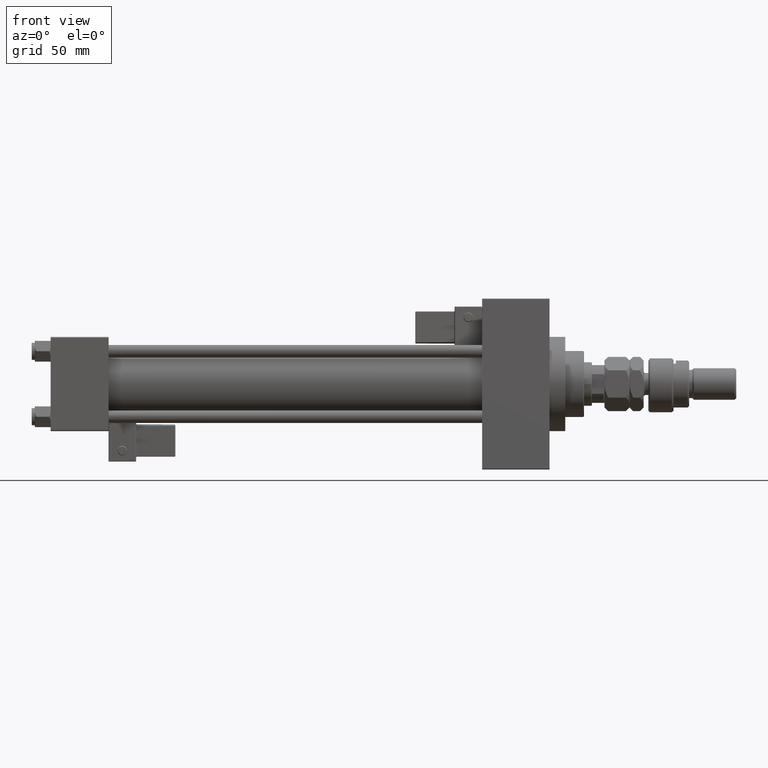
[diagram: clean part render]
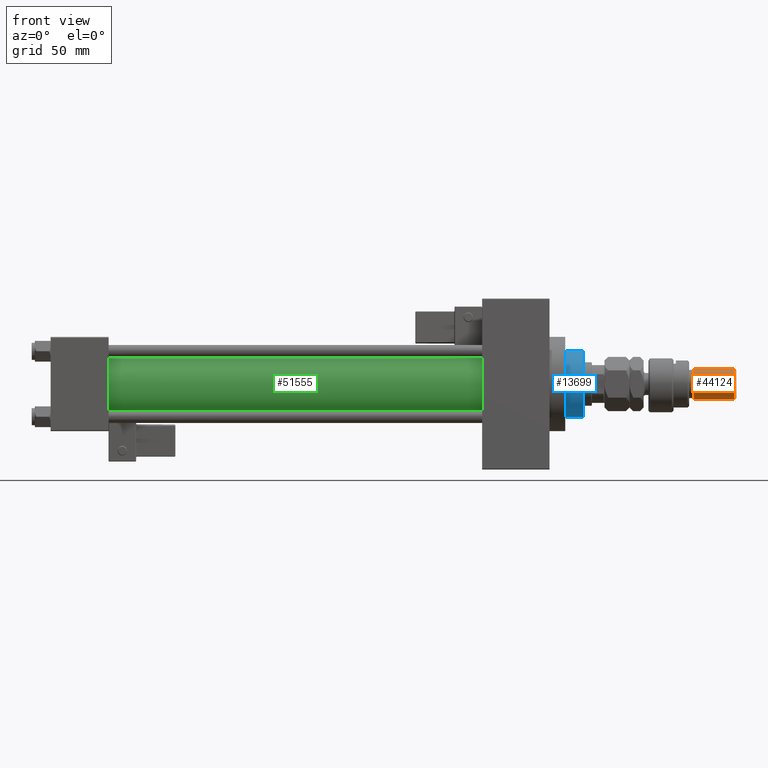
[diagram: same view with three faces highlighted in distinct colors, each labeled with its STEP entity id]
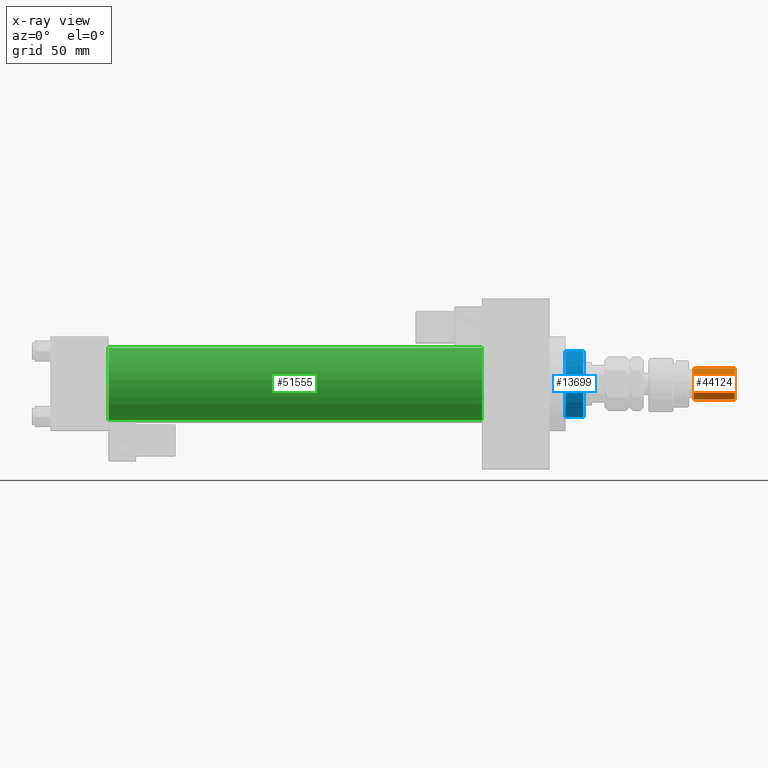
[diagram: x-ray of the same camera — body ghosted, the three highlighted faces saturated]
A machine part, front view with three faces highlighted in distinct colors.
The next image is the same camera in x-ray (body ghosted, the three faces saturated) — at least one of them is partly hidden behind the body in this view.
Their STEP definitions:

[orange] entity #44124 — the highlighted cylindrical surface (edge-blend (fillet) strip) has radius 10 mm, axis along (-1, -0, 0).
#3102 = AXIS2_PLACEMENT_3D ( 'NONE', #18283, #18543, #46204 ) ;
#4699 = CARTESIAN_POINT ( 'NONE',  ( -10.00000000000000000, 0.000000000000000000, 56.00000000000000711 ) ) ;
#8132 = AXIS2_PLACEMENT_3D ( 'NONE', #43010, #23863, #46994 ) ;
#8991 = LINE ( 'NONE', #24952, #42051 ) ;
#9736 = LINE ( 'NONE', #4699, #23521 ) ;
#10538 = VERTEX_POINT ( 'NONE', #19290 ) ;
#16501 = DIRECTION ( 'NONE',  ( 0.000000000000000000, 0.000000000000000000, -1.000000000000000000 ) ) ;
#16929 = ORIENTED_EDGE ( 'NONE', *, *, #42922, .T. ) ;
#18283 = CARTESIAN_POINT ( 'NONE',  ( 0.000000000000000000, 0.000000000000000000, 56.00000000000000711 ) ) ;
#18543 = DIRECTION ( 'NONE',  ( -0.000000000000000000, -0.000000000000000000, -1.000000000000000000 ) ) ;
#19290 = CARTESIAN_POINT ( 'NONE',  ( -10.00000000000000000, 0.000000000000000000, 54.99999999999998579 ) ) ;
#20569 = CARTESIAN_POINT ( 'NONE',  ( 10.00000000000000000, 1.224646799147353256E-15, 54.99999999999998579 ) ) ;
#23004 = CIRCLE ( 'NONE', #28962, 10.00000000000000000 ) ;
#23521 = VECTOR ( 'NONE', #25972, 1000.000000000000000 ) ;
#23863 = DIRECTION ( 'NONE',  ( -0.000000000000000000, -0.000000000000000000, 1.000000000000000000 ) ) ;
#24858 = CARTESIAN_POINT ( 'NONE',  ( -10.00000000000000000, 0.000000000000000000, 29.00000000000000711 ) ) ;
#24952 = CARTESIAN_POINT ( 'NONE',  ( 10.00000000000000000, 1.224646799147353256E-15, 56.00000000000000711 ) ) ;
#25741 = CYLINDRICAL_SURFACE ( 'NONE', #3102, 10.00000000000000000 ) ;
#25972 = DIRECTION ( 'NONE',  ( -0.000000000000000000, -0.000000000000000000, -1.000000000000000000 ) ) ;
#27884 = VERTEX_POINT ( 'NONE', #38079 ) ;
#28937 = DIRECTION ( 'NONE',  ( -0.000000000000000000, -0.000000000000000000, -1.000000000000000000 ) ) ;
#28962 = AXIS2_PLACEMENT_3D ( 'NONE', #36709, #16501, #49192 ) ;
#29515 = EDGE_CURVE ( 'NONE', #40656, #27884, #8991, .T. ) ;
#34796 = EDGE_CURVE ( 'NONE', #10538, #35130, #9736, .T. ) ;
#35130 = VERTEX_POINT ( 'NONE', #24858 ) ;
#35755 = ORIENTED_EDGE ( 'NONE', *, *, #34796, .T. ) ;
#36419 = ORIENTED_EDGE ( 'NONE', *, *, #29515, .F. ) ;
#36709 = CARTESIAN_POINT ( 'NONE',  ( 0.000000000000000000, 0.000000000000000000, 54.99999999999998579 ) ) ;
#37006 = CIRCLE ( 'NONE', #8132, 10.00000000000000000 ) ;
#38079 = CARTESIAN_POINT ( 'NONE',  ( 10.00000000000000000, 1.224646799147353256E-15, 29.00000000000000711 ) ) ;
#40656 = VERTEX_POINT ( 'NONE', #20569 ) ;
#42051 = VECTOR ( 'NONE', #28937, 1000.000000000000000 ) ;
#42735 = FACE_OUTER_BOUND ( 'NONE', #47243, .T. ) ;
#42922 = EDGE_CURVE ( 'NONE', #40656, #10538, #23004, .T. ) ;
#43010 = CARTESIAN_POINT ( 'NONE',  ( 0.000000000000000000, 0.000000000000000000, 29.00000000000000711 ) ) ;
#44124 = ADVANCED_FACE ( 'NONE', ( #42735 ), #25741, .T. ) ;
#44741 = EDGE_CURVE ( 'NONE', #35130, #27884, #37006, .T. ) ;
#46204 = DIRECTION ( 'NONE',  ( -1.000000000000000000, 0.000000000000000000, 0.000000000000000000 ) ) ;
#46994 = DIRECTION ( 'NONE',  ( 1.000000000000000000, 0.000000000000000000, 0.000000000000000000 ) ) ;
#47243 = EDGE_LOOP ( 'NONE', ( #36419, #16929, #35755, #50334 ) ) ;
#49192 = DIRECTION ( 'NONE',  ( 1.000000000000000000, 0.000000000000000000, 0.000000000000000000 ) ) ;
#50334 = ORIENTED_EDGE ( 'NONE', *, *, #44741, .T. ) ;

[blue] entity #13699 — the highlighted cylindrical surface (edge-blend (fillet) strip) has radius 21 mm, axis along (-1, 0, 0).
#1025 = VERTEX_POINT ( 'NONE', #52368 ) ;
#1793 = DIRECTION ( 'NONE',  ( -1.000000000000000000, 0.000000000000000000, 0.000000000000000000 ) ) ;
#2342 = CIRCLE ( 'NONE', #30345, 21.00000000000000000 ) ;
#3200 = DIRECTION ( 'NONE',  ( 1.000000000000000000, 0.000000000000000000, 0.000000000000000000 ) ) ;
#3350 = DIRECTION ( 'NONE',  ( 1.000000000000000000, 0.000000000000000000, 0.000000000000000000 ) ) ;
#3897 = CIRCLE ( 'NONE', #40417, 21.00000000000000000 ) ;
#6208 = CARTESIAN_POINT ( 'NONE',  ( -21.00000000000000000, 0.000000000000000000, 43.25999999999999801 ) ) ;
#7196 = VECTOR ( 'NONE', #11137, 1000.000000000000000 ) ;
#10683 = VERTEX_POINT ( 'NONE', #38647 ) ;
#11137 = DIRECTION ( 'NONE',  ( -0.000000000000000000, -0.000000000000000000, -1.000000000000000000 ) ) ;
#11287 = CARTESIAN_POINT ( 'NONE',  ( 0.000000000000000000, 0.000000000000000000, 43.25999999999999801 ) ) ;
#12861 = DIRECTION ( 'NONE',  ( -0.000000000000000000, -0.000000000000000000, -1.000000000000000000 ) ) ;
#13699 = ADVANCED_FACE ( 'NONE', ( #46966 ), #30491, .T. ) ;
#13822 = EDGE_CURVE ( 'NONE', #10683, #1025, #14136, .T. ) ;
#14136 = CIRCLE ( 'NONE', #14958, 21.00000000000000000 ) ;
#14958 = AXIS2_PLACEMENT_3D ( 'NONE', #39782, #23836, #3350 ) ;
#16292 = EDGE_CURVE ( 'NONE', #1025, #42723, #45052, .T. ) ;
#18181 = ORIENTED_EDGE ( 'NONE', *, *, #35147, .T. ) ;
#18386 = DIRECTION ( 'NONE',  ( 1.000000000000000000, 0.000000000000000000, 0.000000000000000000 ) ) ;
#18640 = CARTESIAN_POINT ( 'NONE',  ( 0.000000000000000000, 0.000000000000000000, 43.25999999999999801 ) ) ;
#18932 = ORIENTED_EDGE ( 'NONE', *, *, #13822, .T. ) ;
#21497 = VERTEX_POINT ( 'NONE', #28580 ) ;
#22271 = DIRECTION ( 'NONE',  ( -0.000000000000000000, -0.000000000000000000, -1.000000000000000000 ) ) ;
#22636 = EDGE_LOOP ( 'NONE', ( #18932, #51123, #18181, #29403, #52495, #41044 ) ) ;
#23405 = DIRECTION ( 'NONE',  ( 0.000000000000000000, 0.000000000000000000, 1.000000000000000000 ) ) ;
#23836 = DIRECTION ( 'NONE',  ( 0.000000000000000000, 0.000000000000000000, -1.000000000000000000 ) ) ;
#25838 = DIRECTION ( 'NONE',  ( 0.000000000000000000, 0.000000000000000000, 1.000000000000000000 ) ) ;
#26363 = CARTESIAN_POINT ( 'NONE',  ( 0.000000000000000000, 0.000000000000000000, 43.25999999999999801 ) ) ;
#27011 = VECTOR ( 'NONE', #12861, 1000.000000000000000 ) ;
#27100 = LINE ( 'NONE', #47560, #7196 ) ;
#27776 = DIRECTION ( 'NONE',  ( 0.000000000000000000, 0.000000000000000000, 1.000000000000000000 ) ) ;
#28562 = CARTESIAN_POINT ( 'NONE',  ( 21.00000000000000000, 2.571758278209441661E-15, 55.26000000000000512 ) ) ;
#28580 = CARTESIAN_POINT ( 'NONE',  ( -20.96385542168674831, 1.231570484631382412, 43.25999999999999801 ) ) ;
#29363 = EDGE_CURVE ( 'NONE', #10683, #46355, #27100, .T. ) ;
#29403 = ORIENTED_EDGE ( 'NONE', *, *, #31981, .T. ) ;
#29433 = AXIS2_PLACEMENT_3D ( 'NONE', #38986, #22271, #1793 ) ;
#30345 = AXIS2_PLACEMENT_3D ( 'NONE', #18640, #23405, #3200 ) ;
#30491 = CYLINDRICAL_SURFACE ( 'NONE', #29433, 21.00000000000000000 ) ;
#31981 = EDGE_CURVE ( 'NONE', #34960, #21497, #3897, .T. ) ;
#34960 = VERTEX_POINT ( 'NONE', #36569 ) ;
#35147 = EDGE_CURVE ( 'NONE', #42723, #34960, #51589, .T. ) ;
#35170 = EDGE_CURVE ( 'NONE', #21497, #46355, #2342, .T. ) ;
#36569 = CARTESIAN_POINT ( 'NONE',  ( 20.96385542168674831, 1.231570484631385076, 43.25999999999999801 ) ) ;
#38016 = AXIS2_PLACEMENT_3D ( 'NONE', #26363, #25838, #18386 ) ;
#38647 = CARTESIAN_POINT ( 'NONE',  ( -21.00000000000000000, 0.000000000000000000, 54.75999999999999091 ) ) ;
#38986 = CARTESIAN_POINT ( 'NONE',  ( 0.000000000000000000, 0.000000000000000000, 55.26000000000000512 ) ) ;
#39782 = CARTESIAN_POINT ( 'NONE',  ( 0.000000000000000000, 0.000000000000000000, 54.75999999999999091 ) ) ;
#40417 = AXIS2_PLACEMENT_3D ( 'NONE', #11287, #27776, #47451 ) ;
#40440 = CARTESIAN_POINT ( 'NONE',  ( 21.00000000000000000, 2.571758278209441661E-15, 43.25999999999999801 ) ) ;
#41044 = ORIENTED_EDGE ( 'NONE', *, *, #29363, .F. ) ;
#42723 = VERTEX_POINT ( 'NONE', #40440 ) ;
#45052 = LINE ( 'NONE', #28562, #27011 ) ;
#46355 = VERTEX_POINT ( 'NONE', #6208 ) ;
#46966 = FACE_OUTER_BOUND ( 'NONE', #22636, .T. ) ;
#47451 = DIRECTION ( 'NONE',  ( 1.000000000000000000, 0.000000000000000000, 0.000000000000000000 ) ) ;
#47560 = CARTESIAN_POINT ( 'NONE',  ( -21.00000000000000000, 0.000000000000000000, 55.26000000000000512 ) ) ;
#51123 = ORIENTED_EDGE ( 'NONE', *, *, #16292, .T. ) ;
#51589 = CIRCLE ( 'NONE', #38016, 21.00000000000000000 ) ;
#52368 = CARTESIAN_POINT ( 'NONE',  ( 21.00000000000000000, 2.571758278209441661E-15, 54.75999999999999091 ) ) ;
#52495 = ORIENTED_EDGE ( 'NONE', *, *, #35170, .T. ) ;

[green] entity #51555 — the highlighted cylindrical surface (edge-blend (fillet) strip) has radius 23 mm, axis along (-1, -0, -0).
#585 = CARTESIAN_POINT ( 'NONE',  ( 37.00000000000000711, -2.602085213965210642E-15, 0.000000000000000000 ) ) ;
#743 = CARTESIAN_POINT ( 'NONE',  ( 274.9999999999999432, 2.146024240737016609E-16, -23.00000000000000000 ) ) ;
#852 = DIRECTION ( 'NONE',  ( 1.000000000000000000, -0.000000000000000000, 0.000000000000000000 ) ) ;
#3601 = VECTOR ( 'NONE', #12155, 1000.000000000000000 ) ;
#4305 = CARTESIAN_POINT ( 'NONE',  ( 274.9999999999999432, -2.602085213965210642E-15, 23.00000000000000000 ) ) ;
#4608 = AXIS2_PLACEMENT_3D ( 'NONE', #20967, #52600, #12717 ) ;
#5395 = EDGE_CURVE ( 'NONE', #40020, #23033, #32916, .T. ) ;
#6241 = EDGE_CURVE ( 'NONE', #52361, #40020, #19033, .T. ) ;
#8468 = DIRECTION ( 'NONE',  ( -1.000000000000000000, -0.000000000000000000, -0.000000000000000000 ) ) ;
#8577 = DIRECTION ( 'NONE',  ( 0.000000000000000000, 0.000000000000000000, 1.000000000000000000 ) ) ;
#8831 = VECTOR ( 'NONE', #8468, 1000.000000000000000 ) ;
#12155 = DIRECTION ( 'NONE',  ( -1.000000000000000000, -0.000000000000000000, -0.000000000000000000 ) ) ;
#12717 = DIRECTION ( 'NONE',  ( 0.000000000000000000, 0.000000000000000000, -1.000000000000000000 ) ) ;
#14371 = ORIENTED_EDGE ( 'NONE', *, *, #6241, .F. ) ;
#19033 = CIRCLE ( 'NONE', #4608, 23.00000000000000000 ) ;
#19604 = CARTESIAN_POINT ( 'NONE',  ( 274.9999999999999432, -2.602085213965210642E-15, 23.00000000000000000 ) ) ;
#20009 = VERTEX_POINT ( 'NONE', #43999 ) ;
#20140 = LINE ( 'NONE', #19604, #3601 ) ;
#20529 = ORIENTED_EDGE ( 'NONE', *, *, #5395, .F. ) ;
#20601 = EDGE_CURVE ( 'NONE', #52361, #20009, #20140, .T. ) ;
#20650 = AXIS2_PLACEMENT_3D ( 'NONE', #585, #852, #8577 ) ;
#20967 = CARTESIAN_POINT ( 'NONE',  ( 274.9999999999999432, -2.602085213965210642E-15, 0.000000000000000000 ) ) ;
#21269 = CARTESIAN_POINT ( 'NONE',  ( 37.00000000000000711, 2.146024240737016609E-16, -23.00000000000000000 ) ) ;
#21580 = CYLINDRICAL_SURFACE ( 'NONE', #48354, 23.00000000000000000 ) ;
#22569 = EDGE_CURVE ( 'NONE', #20009, #23033, #46156, .T. ) ;
#22626 = DIRECTION ( 'NONE',  ( 0.000000000000000000, 0.000000000000000000, 1.000000000000000000 ) ) ;
#23033 = VERTEX_POINT ( 'NONE', #21269 ) ;
#29132 = EDGE_LOOP ( 'NONE', ( #20529, #14371, #30752, #47826 ) ) ;
#30752 = ORIENTED_EDGE ( 'NONE', *, *, #20601, .T. ) ;
#32916 = LINE ( 'NONE', #52322, #8831 ) ;
#37785 = DIRECTION ( 'NONE',  ( -1.000000000000000000, -0.000000000000000000, -0.000000000000000000 ) ) ;
#40020 = VERTEX_POINT ( 'NONE', #743 ) ;
#43999 = CARTESIAN_POINT ( 'NONE',  ( 37.00000000000000711, -2.602085213965210642E-15, 23.00000000000000000 ) ) ;
#45776 = FACE_OUTER_BOUND ( 'NONE', #29132, .T. ) ;
#46156 = CIRCLE ( 'NONE', #20650, 23.00000000000000000 ) ;
#47826 = ORIENTED_EDGE ( 'NONE', *, *, #22569, .T. ) ;
#48354 = AXIS2_PLACEMENT_3D ( 'NONE', #50803, #37785, #22626 ) ;
#50803 = CARTESIAN_POINT ( 'NONE',  ( 274.9999999999999432, -2.602085213965210642E-15, 0.000000000000000000 ) ) ;
#51555 = ADVANCED_FACE ( 'NONE', ( #45776 ), #21580, .T. ) ;
#52322 = CARTESIAN_POINT ( 'NONE',  ( 274.9999999999999432, 2.146024240737016609E-16, -23.00000000000000000 ) ) ;
#52361 = VERTEX_POINT ( 'NONE', #4305 ) ;
#52600 = DIRECTION ( 'NONE',  ( 1.000000000000000000, 0.000000000000000000, 0.000000000000000000 ) ) ;